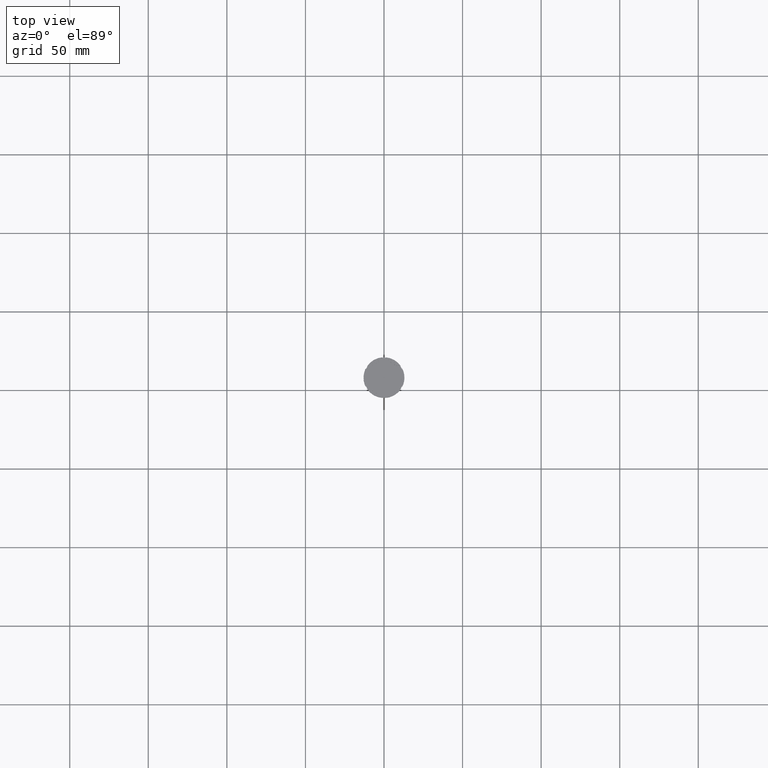
[diagram: clean part render]
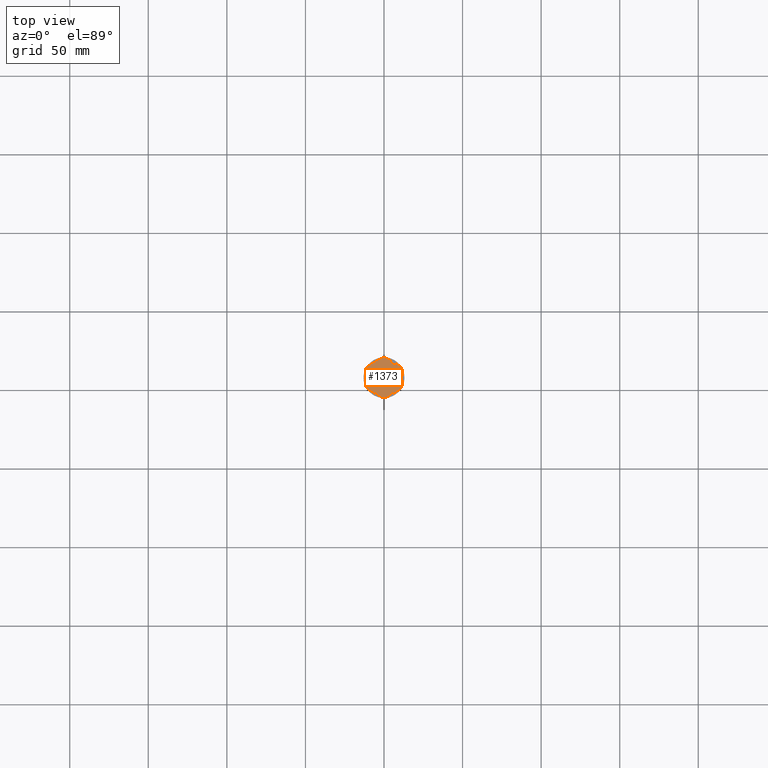
[diagram: same view with one face highlighted and labeled with its STEP entity id]
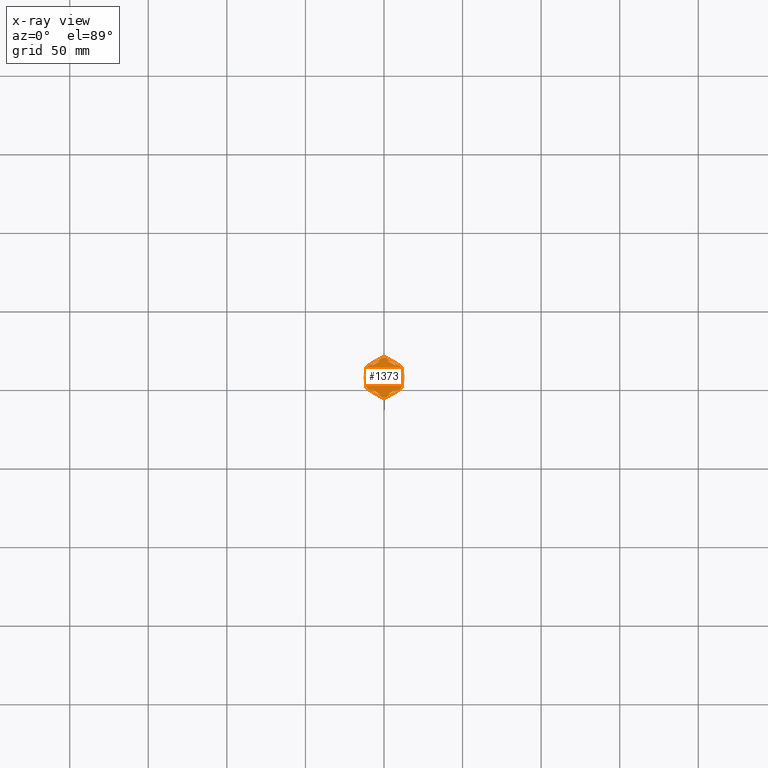
[diagram: x-ray of the same camera — body ghosted, the highlighted face saturated]
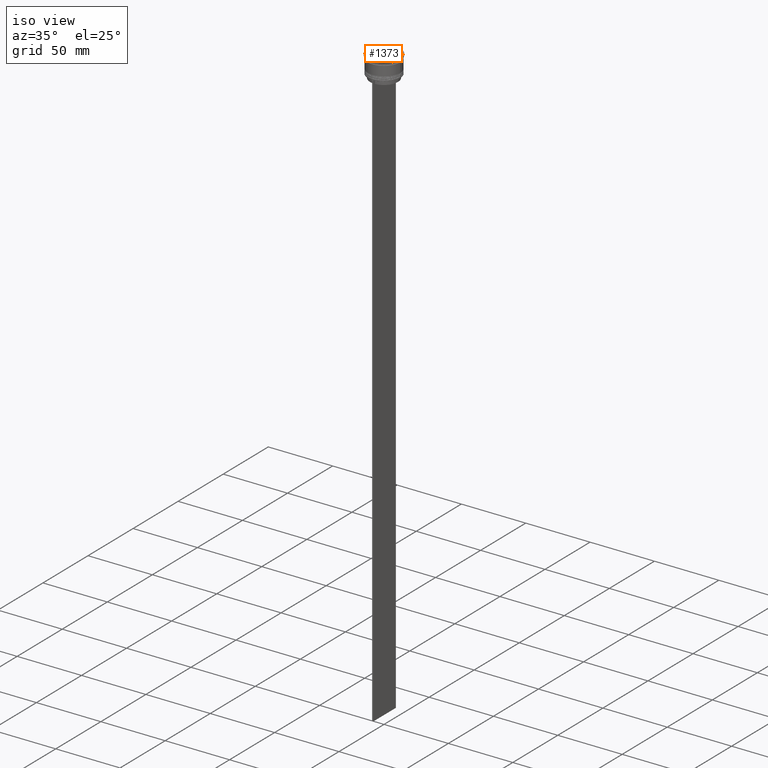
[diagram: same view with one face highlighted and labeled with its STEP entity id]
A machine part, top view. The second image highlights one B-rep face of the part: STEP entity #1373.
The next image is the same camera in x-ray: the body ghosted, the highlighted face saturated — about 0% of this face is hidden behind the body in this view.
A second angle (iso view) of the same face is appended — the face is thin or edge-on in the first view.
In plain terms, the highlighted planar face has unit normal (0, 0, 1).
Its self-contained STEP definition (entity closure, byte-faithful):
#10 = CARTESIAN_POINT ( 'NONE',  ( -2.410545827099867200, 10.73262637081210613, -1.000000000000000888 ) ) ;
#37 = DIRECTION ( 'NONE',  ( -0.000000000000000000, -0.000000000000000000, -1.000000000000000000 ) ) ;
#39 = DIRECTION ( 'NONE',  ( 1.000000000000000000, 0.000000000000000000, 0.000000000000000000 ) ) ;
#44 = LINE ( 'NONE', #260, #1591 ) ;
#46 = LINE ( 'NONE', #937, #757 ) ;
#49 = EDGE_LOOP ( 'NONE', ( #2219, #1385, #2507 ) ) ;
#64 = AXIS2_PLACEMENT_3D ( 'NONE', #1228, #1425, #2312 ) ;
#69 = ORIENTED_EDGE ( 'NONE', *, *, #463, .F. ) ;
#76 = ORIENTED_EDGE ( 'NONE', *, *, #645, .F. ) ;
#98 = EDGE_LOOP ( 'NONE', ( #1112, #2064, #401, #2120, #1179, #2337, #315, #223, #1042, #69, #693, #1362 ) ) ;
#105 = EDGE_CURVE ( 'NONE', #1273, #2483, #356, .T. ) ;
#106 = VECTOR ( 'NONE', #661, 1000.000000000000000 ) ;
#112 = VECTOR ( 'NONE', #2647, 999.9999999999998863 ) ;
#132 = ORIENTED_EDGE ( 'NONE', *, *, #228, .F. ) ;
#138 = CARTESIAN_POINT ( 'NONE',  ( -11.50000000000000000, -5.388877434122992582, -1.000000000000000000 ) ) ;
#146 = FACE_BOUND ( 'NONE', #250, .T. ) ;
#156 = DIRECTION ( 'NONE',  ( 0.000000000000000000, 0.000000000000000000, 1.000000000000000000 ) ) ;
#190 = FACE_BOUND ( 'NONE', #49, .T. ) ;
#205 = EDGE_CURVE ( 'NONE', #1257, #2825, #1790, .T. ) ;
#223 = ORIENTED_EDGE ( 'NONE', *, *, #2514, .F. ) ;
#227 = EDGE_LOOP ( 'NONE', ( #1704, #2136 ) ) ;
#228 = EDGE_CURVE ( 'NONE', #1110, #1806, #350, .T. ) ;
#250 = EDGE_LOOP ( 'NONE', ( #1817, #1266 ) ) ;
#255 = DIRECTION ( 'NONE',  ( -0.8660254037844387076, -0.4999999999999999445, 0.000000000000000000 ) ) ;
#260 = CARTESIAN_POINT ( 'NONE',  ( 0.000000000000000000, 13.27905619136138959, -1.000000000000000000 ) ) ;
#276 = CARTESIAN_POINT ( 'NONE',  ( -1.734723475976807094E-15, 12.12435565298214080, -1.000000000000000888 ) ) ;
#294 = VERTEX_POINT ( 'NONE', #2285 ) ;
#295 = VERTEX_POINT ( 'NONE', #2716 ) ;
#305 = CARTESIAN_POINT ( 'NONE',  ( -8.089454172900133244, -7.453907108661111280, -1.000000000000000888 ) ) ;
#315 = ORIENTED_EDGE ( 'NONE', *, *, #742, .T. ) ;
#333 = EDGE_CURVE ( 'NONE', #1912, #1753, #46, .T. ) ;
#348 = EDGE_CURVE ( 'NONE', #2764, #2267, #664, .T. ) ;
#350 = CIRCLE ( 'NONE', #1455, 11.00000000000000000 ) ;
#351 = AXIS2_PLACEMENT_3D ( 'NONE', #2757, #1401, #2307 ) ;
#356 = LINE ( 'NONE', #2657, #106 ) ;
#366 = CARTESIAN_POINT ( 'NONE',  ( 0.000000000000000000, 0.000000000000000000, -1.000000000000000000 ) ) ;
#379 = DIRECTION ( 'NONE',  ( -0.000000000000000000, -0.000000000000000000, -1.000000000000000000 ) ) ;
#382 = CARTESIAN_POINT ( 'NONE',  ( 0.000000000000000000, 0.000000000000000000, -1.000000000000000000 ) ) ;
#401 = ORIENTED_EDGE ( 'NONE', *, *, #680, .T. ) ;
#411 = CARTESIAN_POINT ( 'NONE',  ( 2.410545827099861871, 10.73262637081210791, -1.000000000000000888 ) ) ;
#413 = CARTESIAN_POINT ( 'NONE',  ( 1.083095244168781557, 12.65373086058254160, -1.000000000000000000 ) ) ;
#444 = VERTEX_POINT ( 'NONE', #411 ) ;
#463 = EDGE_CURVE ( 'NONE', #1257, #747, #2853, .T. ) ;
#494 = DIRECTION ( 'NONE',  ( -0.000000000000000000, -0.000000000000000000, -1.000000000000000000 ) ) ;
#506 = DIRECTION ( 'NONE',  ( -0.8660254037844385966, -0.5000000000000001110, 0.000000000000000000 ) ) ;
#511 = DIRECTION ( 'NONE',  ( 1.000000000000000000, 1.243449787580175325E-14, 0.000000000000000000 ) ) ;
#513 = DIRECTION ( 'NONE',  ( 0.8660254037844385966, 0.5000000000000001110, -0.000000000000000000 ) ) ;
#598 = DIRECTION ( 'NONE',  ( 1.000000000000000000, 0.000000000000000000, -0.000000000000000000 ) ) ;
#645 = EDGE_CURVE ( 'NONE', #1806, #1110, #1826, .T. ) ;
#646 = DIRECTION ( 'NONE',  ( 1.000000000000000000, 0.000000000000000000, 0.000000000000000000 ) ) ;
#659 = CARTESIAN_POINT ( 'NONE',  ( 8.089454172900138573, 7.453907108661105063, -1.000000000000000888 ) ) ;
#661 = DIRECTION ( 'NONE',  ( -0.8660254037844384856, 0.5000000000000002220, 0.000000000000000000 ) ) ;
#664 = CIRCLE ( 'NONE', #2151, 11.00000000000000000 ) ;
#666 = ORIENTED_EDGE ( 'NONE', *, *, #105, .F. ) ;
#672 = AXIS2_PLACEMENT_3D ( 'NONE', #694, #928, #39 ) ;
#680 = EDGE_CURVE ( 'NONE', #294, #1492, #1185, .T. ) ;
#691 = DIRECTION ( 'NONE',  ( 0.8660254037844385966, 0.4999999999999999445, 0.000000000000000000 ) ) ;
#693 = ORIENTED_EDGE ( 'NONE', *, *, #205, .T. ) ;
#694 = CARTESIAN_POINT ( 'NONE',  ( 0.000000000000000000, 0.000000000000000000, -1.000000000000000000 ) ) ;
#699 = CARTESIAN_POINT ( 'NONE',  ( -10.49999999999999822, 3.278719262151000624, -1.000000000000000888 ) ) ;
#707 = VERTEX_POINT ( 'NONE', #10 ) ;
#709 = CARTESIAN_POINT ( 'NONE',  ( -1.083095244168779780, -12.65373086058253982, -1.000000000000000000 ) ) ;
#723 = CARTESIAN_POINT ( 'NONE',  ( 0.000000000000000000, 0.000000000000000000, -1.000000000000000000 ) ) ;
#742 = EDGE_CURVE ( 'NONE', #2819, #927, #1158, .T. ) ;
#747 = VERTEX_POINT ( 'NONE', #709 ) ;
#757 = VECTOR ( 'NONE', #1812, 1000.000000000000000 ) ;
#767 = CARTESIAN_POINT ( 'NONE',  ( 1.083095244168774673, -12.65373086058253982, -1.000000000000000000 ) ) ;
#776 = DIRECTION ( 'NONE',  ( 1.000000000000000000, 0.000000000000000000, 0.000000000000000000 ) ) ;
#790 = DIRECTION ( 'NONE',  ( 0.000000000000000000, 1.000000000000000000, 0.000000000000000000 ) ) ;
#804 = AXIS2_PLACEMENT_3D ( 'NONE', #382, #855, #598 ) ;
#826 = EDGE_CURVE ( 'NONE', #707, #2696, #2197, .T. ) ;
#832 = CARTESIAN_POINT ( 'NONE',  ( 11.49999999999999822, 5.388877434122992582, -1.000000000000000000 ) ) ;
#840 = CARTESIAN_POINT ( 'NONE',  ( -11.50000000000000000, -6.639528095680696573, -1.000000000000000000 ) ) ;
#841 = PLANE ( 'NONE',  #804 ) ;
#855 = DIRECTION ( 'NONE',  ( 0.000000000000000000, 0.000000000000000000, 1.000000000000000000 ) ) ;
#871 = CARTESIAN_POINT ( 'NONE',  ( 0.000000000000000000, 0.000000000000000000, -1.000000000000000000 ) ) ;
#875 = ORIENTED_EDGE ( 'NONE', *, *, #2066, .F. ) ;
#911 = DIRECTION ( 'NONE',  ( 0.000000000000000000, 0.000000000000000000, 1.000000000000000000 ) ) ;
#927 = VERTEX_POINT ( 'NONE', #138 ) ;
#928 = DIRECTION ( 'NONE',  ( 0.000000000000000000, 0.000000000000000000, 1.000000000000000000 ) ) ;
#937 = CARTESIAN_POINT ( 'NONE',  ( 11.49999999999999822, -6.639528095680694797, -1.000000000000000000 ) ) ;
#966 = VERTEX_POINT ( 'NONE', #1751 ) ;
#969 = VERTEX_POINT ( 'NONE', #1523 ) ;
#1025 = VERTEX_POINT ( 'NONE', #2368 ) ;
#1031 = CARTESIAN_POINT ( 'NONE',  ( -10.49999999999999822, 6.062177826491068622, -1.000000000000000888 ) ) ;
#1042 = ORIENTED_EDGE ( 'NONE', *, *, #2170, .T. ) ;
#1051 = DIRECTION ( 'NONE',  ( 0.8660254037844387076, -0.4999999999999997780, 0.000000000000000000 ) ) ;
#1067 = FACE_BOUND ( 'NONE', #227, .T. ) ;
#1074 = CARTESIAN_POINT ( 'NONE',  ( 0.000000000000000000, 0.000000000000000000, -1.000000000000000000 ) ) ;
#1091 = CIRCLE ( 'NONE', #1281, 11.00000000000000000 ) ;
#1094 = LINE ( 'NONE', #1737, #112 ) ;
#1110 = VERTEX_POINT ( 'NONE', #1804 ) ;
#1112 = ORIENTED_EDGE ( 'NONE', *, *, #333, .T. ) ;
#1119 = EDGE_CURVE ( 'NONE', #2267, #969, #1916, .T. ) ;
#1128 = EDGE_CURVE ( 'NONE', #2696, #707, #1993, .T. ) ;
#1158 = LINE ( 'NONE', #1576, #2525 ) ;
#1179 = ORIENTED_EDGE ( 'NONE', *, *, #2392, .T. ) ;
#1185 = LINE ( 'NONE', #2491, #2714 ) ;
#1195 = VECTOR ( 'NONE', #790, 1000.000000000000000 ) ;
#1228 = CARTESIAN_POINT ( 'NONE',  ( 0.000000000000000000, 0.000000000000000000, -1.000000000000000000 ) ) ;
#1240 = EDGE_CURVE ( 'NONE', #1912, #2825, #2718, .T. ) ;
#1251 = LINE ( 'NONE', #840, #2156 ) ;
#1257 = VERTEX_POINT ( 'NONE', #767 ) ;
#1262 = LINE ( 'NONE', #1031, #1195 ) ;
#1266 = ORIENTED_EDGE ( 'NONE', *, *, #1128, .F. ) ;
#1273 = VERTEX_POINT ( 'NONE', #1623 ) ;
#1281 = AXIS2_PLACEMENT_3D ( 'NONE', #2143, #156, #2824 ) ;
#1306 = CARTESIAN_POINT ( 'NONE',  ( -10.41690475583121334, -7.264853426459548125, -1.000000000000000000 ) ) ;
#1351 = CARTESIAN_POINT ( 'NONE',  ( -2.602085213965210642E-15, -12.12435565298214080, -1.000000000000000888 ) ) ;
#1362 = ORIENTED_EDGE ( 'NONE', *, *, #1240, .F. ) ;
#1363 = AXIS2_PLACEMENT_3D ( 'NONE', #723, #37, #511 ) ;
#1373 = ADVANCED_FACE ( 'NONE', ( #1067, #2145, #1734, #1710, #190, #146, #1699 ), #841, .T. ) ;
#1385 = ORIENTED_EDGE ( 'NONE', *, *, #2586, .F. ) ;
#1401 = DIRECTION ( 'NONE',  ( 0.000000000000000000, 0.000000000000000000, 1.000000000000000000 ) ) ;
#1408 = VERTEX_POINT ( 'NONE', #1306 ) ;
#1420 = ORIENTED_EDGE ( 'NONE', *, *, #2694, .F. ) ;
#1425 = DIRECTION ( 'NONE',  ( 0.000000000000000000, 0.000000000000000000, 1.000000000000000000 ) ) ;
#1455 = AXIS2_PLACEMENT_3D ( 'NONE', #2421, #911, #1520 ) ;
#1460 = AXIS2_PLACEMENT_3D ( 'NONE', #2545, #2309, #2332 ) ;
#1462 = EDGE_CURVE ( 'NONE', #2819, #2426, #1537, .T. ) ;
#1492 = VERTEX_POINT ( 'NONE', #413 ) ;
#1499 = VECTOR ( 'NONE', #691, 1000.000000000000114 ) ;
#1520 = DIRECTION ( 'NONE',  ( 1.000000000000000000, 0.000000000000000000, 0.000000000000000000 ) ) ;
#1523 = CARTESIAN_POINT ( 'NONE',  ( -10.49999999999999822, -3.278719262151000624, -1.000000000000000888 ) ) ;
#1537 = CIRCLE ( 'NONE', #1784, 12.69999999999999929 ) ;
#1546 = EDGE_CURVE ( 'NONE', #294, #1753, #2663, .T. ) ;
#1576 = CARTESIAN_POINT ( 'NONE',  ( -11.50000000000000000, 6.639528095680691244, -1.000000000000000000 ) ) ;
#1578 = LINE ( 'NONE', #1351, #2396 ) ;
#1590 = VERTEX_POINT ( 'NONE', #659 ) ;
#1591 = VECTOR ( 'NONE', #506, 1000.000000000000114 ) ;
#1595 = AXIS2_PLACEMENT_3D ( 'NONE', #2475, #494, #2256 ) ;
#1623 = CARTESIAN_POINT ( 'NONE',  ( -2.410545827099876082, -10.73262637081210435, -1.000000000000000888 ) ) ;
#1630 = DIRECTION ( 'NONE',  ( 1.000000000000000000, 0.000000000000000000, 0.000000000000000000 ) ) ;
#1699 = FACE_OUTER_BOUND ( 'NONE', #98, .T. ) ;
#1704 = ORIENTED_EDGE ( 'NONE', *, *, #2193, .F. ) ;
#1710 = FACE_BOUND ( 'NONE', #2777, .T. ) ;
#1734 = FACE_BOUND ( 'NONE', #2427, .T. ) ;
#1737 = CARTESIAN_POINT ( 'NONE',  ( 10.49999999999999467, 6.062177826491072175, -1.000000000000000888 ) ) ;
#1746 = DIRECTION ( 'NONE',  ( 1.000000000000000000, 0.000000000000000000, 0.000000000000000000 ) ) ;
#1751 = CARTESIAN_POINT ( 'NONE',  ( 8.089454172900135021, -7.453907108661109504, -1.000000000000000888 ) ) ;
#1753 = VERTEX_POINT ( 'NONE', #832 ) ;
#1784 = AXIS2_PLACEMENT_3D ( 'NONE', #871, #2379, #1746 ) ;
#1790 = LINE ( 'NONE', #2449, #1499 ) ;
#1800 = DIRECTION ( 'NONE',  ( -0.000000000000000000, -0.000000000000000000, -1.000000000000000000 ) ) ;
#1804 = CARTESIAN_POINT ( 'NONE',  ( 10.49999999999999467, -3.278719262151014835, -1.000000000000000888 ) ) ;
#1806 = VERTEX_POINT ( 'NONE', #2204 ) ;
#1807 = DIRECTION ( 'NONE',  ( -0.8660254037844388186, 0.4999999999999997224, 0.000000000000000000 ) ) ;
#1808 = EDGE_CURVE ( 'NONE', #444, #1590, #1094, .T. ) ;
#1812 = DIRECTION ( 'NONE',  ( 1.306360520641008153E-16, 1.000000000000000000, 0.000000000000000000 ) ) ;
#1817 = ORIENTED_EDGE ( 'NONE', *, *, #826, .F. ) ;
#1824 = VECTOR ( 'NONE', #513, 1000.000000000000000 ) ;
#1826 = LINE ( 'NONE', #2726, #1914 ) ;
#1827 = CARTESIAN_POINT ( 'NONE',  ( 10.41690475583121867, -7.264853426459537467, -1.000000000000000000 ) ) ;
#1909 = AXIS2_PLACEMENT_3D ( 'NONE', #2005, #1800, #1976 ) ;
#1912 = VERTEX_POINT ( 'NONE', #1964 ) ;
#1914 = VECTOR ( 'NONE', #2844, 1000.000000000000000 ) ;
#1916 = CIRCLE ( 'NONE', #672, 11.00000000000000000 ) ;
#1964 = CARTESIAN_POINT ( 'NONE',  ( 11.49999999999999822, -5.388877434122996135, -1.000000000000000000 ) ) ;
#1976 = DIRECTION ( 'NONE',  ( 1.000000000000000000, -1.776356839400250465E-14, 0.000000000000000000 ) ) ;
#1992 = ORIENTED_EDGE ( 'NONE', *, *, #2799, .F. ) ;
#1993 = LINE ( 'NONE', #276, #1824 ) ;
#1996 = DIRECTION ( 'NONE',  ( 0.000000000000000000, -1.000000000000000000, 0.000000000000000000 ) ) ;
#2005 = CARTESIAN_POINT ( 'NONE',  ( 0.000000000000000000, 0.000000000000000000, -1.000000000000000000 ) ) ;
#2023 = EDGE_CURVE ( 'NONE', #295, #1492, #2625, .T. ) ;
#2031 = CARTESIAN_POINT ( 'NONE',  ( -11.50000000000000000, 5.388877434122992582, -1.000000000000000000 ) ) ;
#2047 = DIRECTION ( 'NONE',  ( 0.000000000000000000, 0.000000000000000000, 1.000000000000000000 ) ) ;
#2059 = CIRCLE ( 'NONE', #2723, 11.00000000000000000 ) ;
#2064 = ORIENTED_EDGE ( 'NONE', *, *, #1546, .F. ) ;
#2066 = EDGE_CURVE ( 'NONE', #2483, #1273, #2856, .T. ) ;
#2083 = CARTESIAN_POINT ( 'NONE',  ( 0.000000000000000000, 0.000000000000000000, -1.000000000000000000 ) ) ;
#2120 = ORIENTED_EDGE ( 'NONE', *, *, #2023, .F. ) ;
#2136 = ORIENTED_EDGE ( 'NONE', *, *, #1808, .F. ) ;
#2143 = CARTESIAN_POINT ( 'NONE',  ( 0.000000000000000000, 0.000000000000000000, -1.000000000000000000 ) ) ;
#2145 = FACE_BOUND ( 'NONE', #2205, .T. ) ;
#2151 = AXIS2_PLACEMENT_3D ( 'NONE', #2083, #2047, #1630 ) ;
#2156 = VECTOR ( 'NONE', #1051, 1000.000000000000227 ) ;
#2168 = CARTESIAN_POINT ( 'NONE',  ( -8.089454172900135021, 7.453907108661106840, -1.000000000000000888 ) ) ;
#2170 = EDGE_CURVE ( 'NONE', #1408, #747, #1251, .T. ) ;
#2193 = EDGE_CURVE ( 'NONE', #1590, #444, #1091, .T. ) ;
#2197 = CIRCLE ( 'NONE', #64, 11.00000000000000000 ) ;
#2204 = CARTESIAN_POINT ( 'NONE',  ( 10.49999999999999467, 3.278719262151012170, -1.000000000000000888 ) ) ;
#2205 = EDGE_LOOP ( 'NONE', ( #132, #76 ) ) ;
#2219 = ORIENTED_EDGE ( 'NONE', *, *, #348, .F. ) ;
#2256 = DIRECTION ( 'NONE',  ( 1.000000000000000000, 7.105427357601001859E-15, 0.000000000000000000 ) ) ;
#2267 = VERTEX_POINT ( 'NONE', #2409 ) ;
#2285 = CARTESIAN_POINT ( 'NONE',  ( 10.41690475583121156, 7.264853426459550789, -1.000000000000000000 ) ) ;
#2287 = AXIS2_PLACEMENT_3D ( 'NONE', #366, #379, #776 ) ;
#2307 = DIRECTION ( 'NONE',  ( 1.000000000000000000, 0.000000000000000000, 0.000000000000000000 ) ) ;
#2309 = DIRECTION ( 'NONE',  ( -0.000000000000000000, -0.000000000000000000, -1.000000000000000000 ) ) ;
#2312 = DIRECTION ( 'NONE',  ( 1.000000000000000000, 0.000000000000000000, 0.000000000000000000 ) ) ;
#2332 = DIRECTION ( 'NONE',  ( 1.000000000000000000, 0.000000000000000000, 0.000000000000000000 ) ) ;
#2337 = ORIENTED_EDGE ( 'NONE', *, *, #1462, .F. ) ;
#2368 = CARTESIAN_POINT ( 'NONE',  ( 2.410545827099865868, -10.73262637081210791, -1.000000000000000888 ) ) ;
#2379 = DIRECTION ( 'NONE',  ( -0.000000000000000000, -0.000000000000000000, -1.000000000000000000 ) ) ;
#2392 = EDGE_CURVE ( 'NONE', #295, #2426, #44, .T. ) ;
#2396 = VECTOR ( 'NONE', #255, 999.9999999999998863 ) ;
#2407 = DIRECTION ( 'NONE',  ( 0.000000000000000000, 0.000000000000000000, 1.000000000000000000 ) ) ;
#2409 = CARTESIAN_POINT ( 'NONE',  ( -11.00000000000000000, 0.000000000000000000, -1.000000000000000000 ) ) ;
#2421 = CARTESIAN_POINT ( 'NONE',  ( 0.000000000000000000, 0.000000000000000000, -1.000000000000000000 ) ) ;
#2426 = VERTEX_POINT ( 'NONE', #2687 ) ;
#2427 = EDGE_LOOP ( 'NONE', ( #1420, #1992 ) ) ;
#2449 = CARTESIAN_POINT ( 'NONE',  ( 5.612359739892467248E-18, -13.27905619136138959, -1.000000000000000000 ) ) ;
#2475 = CARTESIAN_POINT ( 'NONE',  ( 0.000000000000000000, 0.000000000000000000, -1.000000000000000000 ) ) ;
#2483 = VERTEX_POINT ( 'NONE', #305 ) ;
#2491 = CARTESIAN_POINT ( 'NONE',  ( 11.50000000000000000, 6.639528095680698350, -1.000000000000000000 ) ) ;
#2507 = ORIENTED_EDGE ( 'NONE', *, *, #1119, .F. ) ;
#2514 = EDGE_CURVE ( 'NONE', #1408, #927, #2765, .T. ) ;
#2525 = VECTOR ( 'NONE', #1996, 1000.000000000000000 ) ;
#2545 = CARTESIAN_POINT ( 'NONE',  ( 0.000000000000000000, 0.000000000000000000, -1.000000000000000000 ) ) ;
#2586 = EDGE_CURVE ( 'NONE', #969, #2764, #1262, .T. ) ;
#2625 = CIRCLE ( 'NONE', #1363, 12.69999999999999929 ) ;
#2647 = DIRECTION ( 'NONE',  ( 0.8660254037844387076, -0.4999999999999999445, 0.000000000000000000 ) ) ;
#2657 = CARTESIAN_POINT ( 'NONE',  ( -10.49999999999999822, -6.062177826491068622, -1.000000000000000888 ) ) ;
#2663 = CIRCLE ( 'NONE', #1909, 12.69999999999999929 ) ;
#2687 = CARTESIAN_POINT ( 'NONE',  ( -10.41690475583121689, 7.264853426459546348, -1.000000000000000000 ) ) ;
#2694 = EDGE_CURVE ( 'NONE', #1025, #966, #2059, .T. ) ;
#2696 = VERTEX_POINT ( 'NONE', #2168 ) ;
#2714 = VECTOR ( 'NONE', #1807, 1000.000000000000000 ) ;
#2716 = CARTESIAN_POINT ( 'NONE',  ( -1.083095244168783333, 12.65373086058254160, -1.000000000000000000 ) ) ;
#2718 = CIRCLE ( 'NONE', #1460, 12.69999999999999929 ) ;
#2723 = AXIS2_PLACEMENT_3D ( 'NONE', #1074, #2407, #646 ) ;
#2726 = CARTESIAN_POINT ( 'NONE',  ( 10.49999999999999289, -6.062177826491073063, -1.000000000000000888 ) ) ;
#2757 = CARTESIAN_POINT ( 'NONE',  ( 0.000000000000000000, 0.000000000000000000, -1.000000000000000000 ) ) ;
#2764 = VERTEX_POINT ( 'NONE', #699 ) ;
#2765 = CIRCLE ( 'NONE', #1595, 12.69999999999999929 ) ;
#2777 = EDGE_LOOP ( 'NONE', ( #875, #666 ) ) ;
#2799 = EDGE_CURVE ( 'NONE', #966, #1025, #1578, .T. ) ;
#2819 = VERTEX_POINT ( 'NONE', #2031 ) ;
#2824 = DIRECTION ( 'NONE',  ( 1.000000000000000000, 0.000000000000000000, 0.000000000000000000 ) ) ;
#2825 = VERTEX_POINT ( 'NONE', #1827 ) ;
#2844 = DIRECTION ( 'NONE',  ( -1.430775808321104180E-16, -1.000000000000000000, 0.000000000000000000 ) ) ;
#2853 = CIRCLE ( 'NONE', #2287, 12.69999999999999929 ) ;
#2856 = CIRCLE ( 'NONE', #351, 11.00000000000000000 ) ;